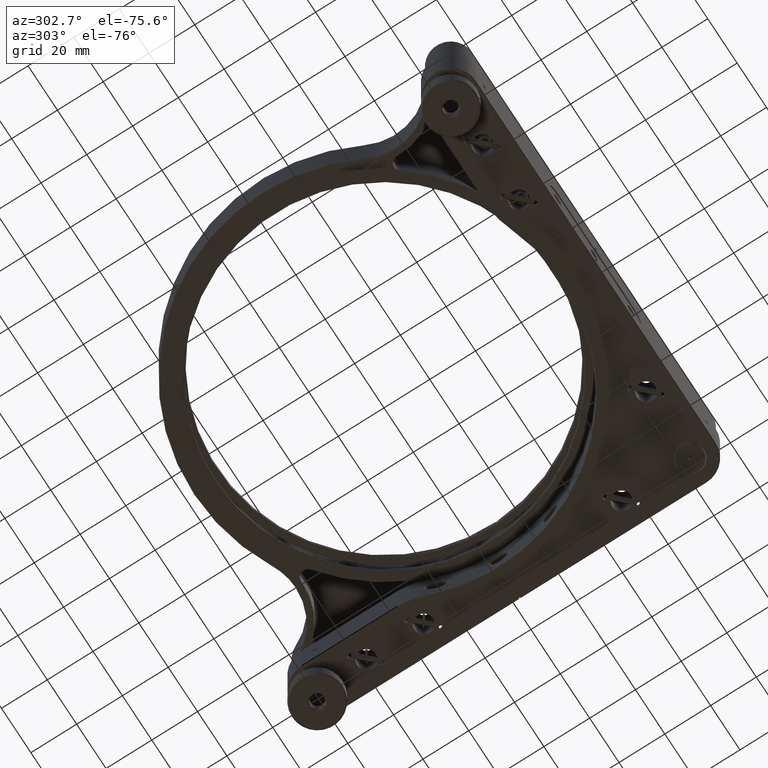
[diagram: clean part render]
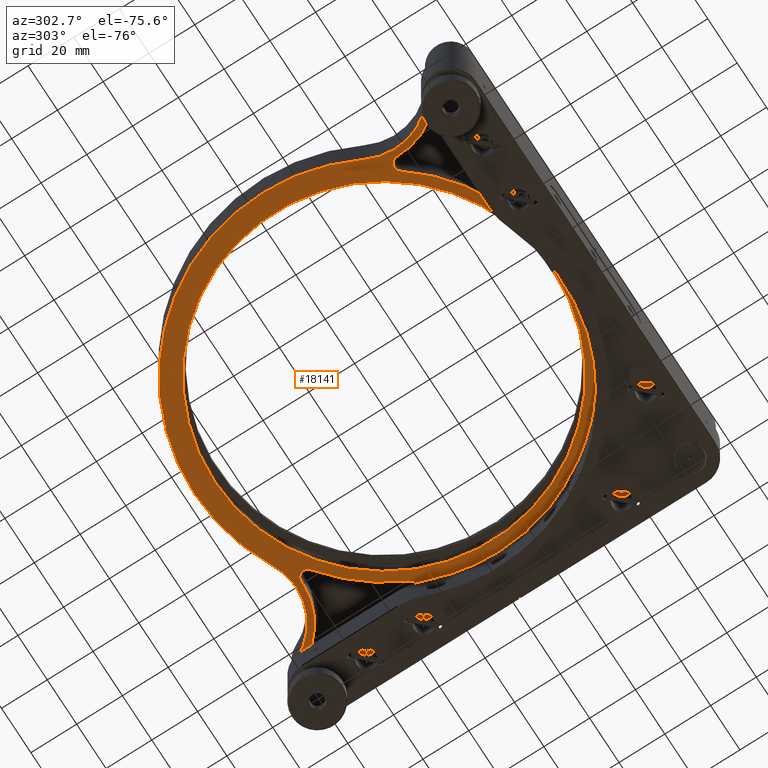
[diagram: same view with one face highlighted and labeled with its STEP entity id]
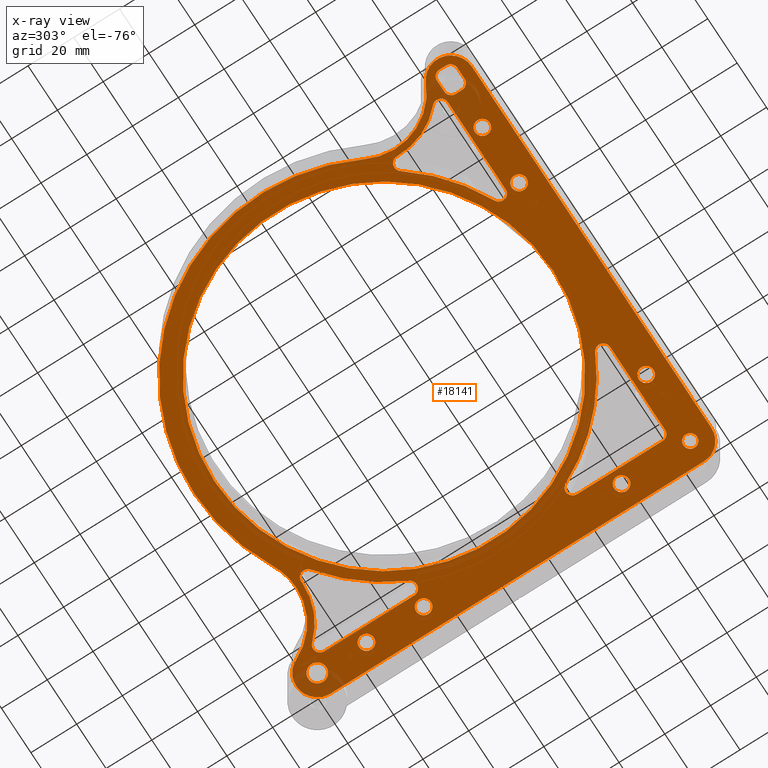
[diagram: x-ray of the same camera — body ghosted, the highlighted face saturated]
A machine part, auxiliary view. The second image highlights one B-rep face of the part: STEP entity #18141.
The next image is the same camera in x-ray: the body ghosted, the highlighted face saturated — about 4% of this face is hidden behind the body in this view.
In plain terms, the highlighted planar face has unit normal (0, 0, 1).
Its self-contained STEP definition (entity closure, byte-faithful):
#26 = CIRCLE ( 'NONE', #3584, 3.000000000000002665 ) ;
#42 = CIRCLE ( 'NONE', #2106, 3.000000000000002665 ) ;
#74 = CARTESIAN_POINT ( 'NONE',  ( -7.225088634215363212E-13, 82.75000000000062528, 14.49528137423859420 ) ) ;
#103 = CARTESIAN_POINT ( 'NONE',  ( -6.696032670337678088E-13, 5.872038966181489995E-13, 14.49528137423859420 ) ) ;
#125 = DIRECTION ( 'NONE',  ( -5.496153587253248179E-16, 1.000000000000000000, 0.000000000000000000 ) ) ;
#159 = DIRECTION ( 'NONE',  ( -1.460576560598803085E-21, 1.472652018071817779E-36, -1.000000000000000000 ) ) ;
#190 = EDGE_LOOP ( 'NONE', ( #4580, #17209, #10339, #1251, #1299, #453, #10093, #14213 ) ) ;
#279 = EDGE_CURVE ( 'NONE', #450, #8023, #9101, .T. ) ;
#294 = VECTOR ( 'NONE', #6792, 1000.000000000000000 ) ;
#301 = FACE_BOUND ( 'NONE', #10457, .T. ) ;
#371 = CARTESIAN_POINT ( 'NONE',  ( 50.05730326211742209, 95.69883170720790133, 14.49528137423859420 ) ) ;
#375 = DIRECTION ( 'NONE',  ( 1.460576560598803085E-21, -1.472652018071817779E-36, 1.000000000000000000 ) ) ;
#434 = VERTEX_POINT ( 'NONE', #3699 ) ;
#450 = VERTEX_POINT ( 'NONE', #1000 ) ;
#453 = ORIENTED_EDGE ( 'NONE', *, *, #7328, .T. ) ;
#484 = DIRECTION ( 'NONE',  ( -1.460576560598803085E-21, 1.472652018071817779E-36, -1.000000000000000000 ) ) ;
#517 = CARTESIAN_POINT ( 'NONE',  ( -6.696032670337678088E-13, 5.872038966181489995E-13, 14.49528137423859420 ) ) ;
#521 = CARTESIAN_POINT ( 'NONE',  ( 75.99999999999947420, -35.55896511429946116, 14.49528137423859420 ) ) ;
#591 = CIRCLE ( 'NONE', #11032, 74.00000000000018474 ) ;
#664 = EDGE_CURVE ( 'NONE', #9955, #13564, #17014, .T. ) ;
#678 = ORIENTED_EDGE ( 'NONE', *, *, #2434, .F. ) ;
#680 = DIRECTION ( 'NONE',  ( -1.460576560598803085E-21, 1.472652018071817779E-36, -1.000000000000000000 ) ) ;
#711 = DIRECTION ( 'NONE',  ( -1.000000000000000000, -6.383782391594649121E-16, 1.460576560598804778E-21 ) ) ;
#716 = EDGE_LOOP ( 'NONE', ( #8131, #7593, #13383, #7918, #17408, #14347, #7752, #2413, #1112, #1516, #16613 ) ) ;
#738 = ORIENTED_EDGE ( 'NONE', *, *, #10214, .T. ) ;
#825 = CIRCLE ( 'NONE', #10336, 3.250000000000016875 ) ;
#902 = CARTESIAN_POINT ( 'NONE',  ( 70.30295566502407212, -34.24521024554459103, 14.49528137423859420 ) ) ;
#964 = EDGE_CURVE ( 'NONE', #2682, #13593, #7261, .T. ) ;
#981 = CARTESIAN_POINT ( 'NONE',  ( 73.06971174419042825, 85.30693313888961882, 14.49528137423859420 ) ) ;
#999 = CIRCLE ( 'NONE', #5468, 3.250000000000016875 ) ;
#1000 = CARTESIAN_POINT ( 'NONE',  ( 78.24999999999943157, 35.00000000000068212, 14.49528137423859420 ) ) ;
#1005 = EDGE_CURVE ( 'NONE', #7389, #14869, #11406, .T. ) ;
#1013 = AXIS2_PLACEMENT_3D ( 'NONE', #14277, #1447, #8543 ) ;
#1039 = CARTESIAN_POINT ( 'NONE',  ( 72.99999999999950262, -75.99999999999950262, 14.49528137423859420 ) ) ;
#1054 = VERTEX_POINT ( 'NONE', #8440 ) ;
#1089 = DIRECTION ( 'NONE',  ( 0.000000000000000000, -1.000000000000000000, 0.000000000000000000 ) ) ;
#1091 = AXIS2_PLACEMENT_3D ( 'NONE', #7170, #12829, #14827 ) ;
#1112 = ORIENTED_EDGE ( 'NONE', *, *, #664, .T. ) ;
#1201 = EDGE_CURVE ( 'NONE', #13564, #14703, #17025, .T. ) ;
#1207 = CARTESIAN_POINT ( 'NONE',  ( -35.00000000000068923, -84.74999999999958789, 14.49528137423859420 ) ) ;
#1251 = ORIENTED_EDGE ( 'NONE', *, *, #18073, .T. ) ;
#1252 = EDGE_CURVE ( 'NONE', #8023, #450, #15269, .T. ) ;
#1266 = DIRECTION ( 'NONE',  ( 0.000000000000000000, -1.000000000000000000, 0.000000000000000000 ) ) ;
#1270 = EDGE_CURVE ( 'NONE', #2913, #12759, #15251, .T. ) ;
#1299 = ORIENTED_EDGE ( 'NONE', *, *, #2012, .T. ) ;
#1340 = VECTOR ( 'NONE', #8497, 1000.000000000000000 ) ;
#1447 = DIRECTION ( 'NONE',  ( -1.460576560598803085E-21, 1.472652018071817779E-36, -1.000000000000000000 ) ) ;
#1472 = CARTESIAN_POINT ( 'NONE',  ( -34.24521024554584159, -70.30295566502414317, 14.49528137423859420 ) ) ;
#1516 = ORIENTED_EDGE ( 'NONE', *, *, #1201, .T. ) ;
#1558 = ORIENTED_EDGE ( 'NONE', *, *, #5052, .F. ) ;
#1572 = DIRECTION ( 'NONE',  ( -6.383782391594654052E-16, 1.000000000000000000, 0.000000000000000000 ) ) ;
#1582 = VECTOR ( 'NONE', #11052, 1000.000000000000000 ) ;
#1598 = VERTEX_POINT ( 'NONE', #15937 ) ;
#1625 = CARTESIAN_POINT ( 'NONE',  ( 75.99999999999950262, -72.99999999999950262, 14.49528137423859420 ) ) ;
#1659 = CIRCLE ( 'NONE', #15620, 78.20000000000018758 ) ;
#1680 = CARTESIAN_POINT ( 'NONE',  ( 35.55896511429946116, -72.99999999999951683, 14.49528137423859420 ) ) ;
#1691 = FACE_BOUND ( 'NONE', #12952, .T. ) ;
#1709 = ORIENTED_EDGE ( 'NONE', *, *, #6888, .T. ) ;
#1743 = DIRECTION ( 'NONE',  ( 0.000000000000000000, 1.000000000000000000, 0.000000000000000000 ) ) ;
#1751 = VERTEX_POINT ( 'NONE', #6835 ) ;
#1766 = AXIS2_PLACEMENT_3D ( 'NONE', #13443, #7706, #6584 ) ;
#1768 = DIRECTION ( 'NONE',  ( 0.000000000000000000, 1.000000000000000000, 0.000000000000000000 ) ) ;
#1860 = CIRCLE ( 'NONE', #11986, 3.000000000000016431 ) ;
#1888 = CARTESIAN_POINT ( 'NONE',  ( 81.49999999999951683, -81.49999999999948841, 14.49528137423859420 ) ) ;
#1932 = ORIENTED_EDGE ( 'NONE', *, *, #17978, .F. ) ;
#1952 = DIRECTION ( 'NONE',  ( -1.460576560598803085E-21, 1.472652018071817779E-36, -1.000000000000000000 ) ) ;
#2010 = AXIS2_PLACEMENT_3D ( 'NONE', #11504, #9757, #14095 ) ;
#2012 = EDGE_CURVE ( 'NONE', #13583, #434, #12521, .T. ) ;
#2055 = FACE_BOUND ( 'NONE', #18364, .T. ) ;
#2056 = EDGE_CURVE ( 'NONE', #13387, #15421, #42, .T. ) ;
#2071 = CARTESIAN_POINT ( 'NONE',  ( -76.00000000000075318, -82.94999999999959073, 14.49528137423859420 ) ) ;
#2094 = CARTESIAN_POINT ( 'NONE',  ( -35.00000000000068923, -81.49999999999957367, 14.49528137423859420 ) ) ;
#2095 = EDGE_CURVE ( 'NONE', #13593, #17968, #3609, .T. ) ;
#2106 = AXIS2_PLACEMENT_3D ( 'NONE', #3085, #3354, #9147 ) ;
#2178 = VECTOR ( 'NONE', #711, 1000.000000000000000 ) ;
#2217 = CARTESIAN_POINT ( 'NONE',  ( 50.05730326211742209, 95.69883170720790133, 14.49528137423859420 ) ) ;
#2261 = DIRECTION ( 'NONE',  ( 0.000000000000000000, -1.000000000000000000, 0.000000000000000000 ) ) ;
#2264 = DIRECTION ( 'NONE',  ( 1.460576560598803085E-21, -1.472652018071817779E-36, 1.000000000000000000 ) ) ;
#2289 = CIRCLE ( 'NONE', #4663, 3.000000000000009770 ) ;
#2302 = EDGE_LOOP ( 'NONE', ( #13337, #15988 ) ) ;
#2328 = VERTEX_POINT ( 'NONE', #9893 ) ;
#2347 = DIRECTION ( 'NONE',  ( -6.383782391594649121E-16, 1.000000000000000000, 0.000000000000000000 ) ) ;
#2413 = ORIENTED_EDGE ( 'NONE', *, *, #12604, .T. ) ;
#2426 = DIRECTION ( 'NONE',  ( 1.000000000000000000, 6.383782391594649121E-16, -1.460576560598804778E-21 ) ) ;
#2434 = EDGE_CURVE ( 'NONE', #8134, #8770, #17543, .T. ) ;
#2589 = EDGE_CURVE ( 'NONE', #4837, #18090, #10411, .T. ) ;
#2682 = VERTEX_POINT ( 'NONE', #9974 ) ;
#2693 = ORIENTED_EDGE ( 'NONE', *, *, #5130, .T. ) ;
#2725 = DIRECTION ( 'NONE',  ( -1.460576560598803085E-21, 1.472652018071817779E-36, -1.000000000000000000 ) ) ;
#2761 = VERTEX_POINT ( 'NONE', #15622 ) ;
#2764 = EDGE_CURVE ( 'NONE', #18090, #4837, #591, .T. ) ;
#2778 = AXIS2_PLACEMENT_3D ( 'NONE', #13649, #9506, #16803 ) ;
#2849 = DIRECTION ( 'NONE',  ( 1.460576560598803085E-21, -1.472652018071817779E-36, 1.000000000000000000 ) ) ;
#2853 = CARTESIAN_POINT ( 'NONE',  ( 75.99999999999950262, -72.99999999999950262, 14.49528137423859420 ) ) ;
#2858 = AXIS2_PLACEMENT_3D ( 'NONE', #15834, #11747, #125 ) ;
#2886 = CARTESIAN_POINT ( 'NONE',  ( -6.782768844136518443E-13, 6.010816844259634563E-13, 14.49528137423859420 ) ) ;
#2904 = ORIENTED_EDGE ( 'NONE', *, *, #1270, .T. ) ;
#2913 = VERTEX_POINT ( 'NONE', #6310 ) ;
#2920 = CARTESIAN_POINT ( 'NONE',  ( 90.74999999999950262, 6.451367218218706512E-13, 14.49528137423859420 ) ) ;
#2939 = DIRECTION ( 'NONE',  ( 1.460576560598803085E-21, -1.472652018071817779E-36, 1.000000000000000000 ) ) ;
#2954 = VERTEX_POINT ( 'NONE', #13647 ) ;
#2979 = VERTEX_POINT ( 'NONE', #18187 ) ;
#3042 = DIRECTION ( 'NONE',  ( -6.383782391594654052E-16, 1.000000000000000000, 0.000000000000000000 ) ) ;
#3061 = CARTESIAN_POINT ( 'NONE',  ( -87.00000000000072475, -80.04999999999961346, 14.49528137423859420 ) ) ;
#3085 = CARTESIAN_POINT ( 'NONE',  ( -64.71538202588615718, -49.04446277862235348, 14.49528137423859420 ) ) ;
#3106 = DIRECTION ( 'NONE',  ( 1.460576560598803085E-21, -1.472652018071817779E-36, 1.000000000000000000 ) ) ;
#3162 = DIRECTION ( 'NONE',  ( -6.383782391594649121E-16, 1.000000000000000000, 7.842971355069754061E-37 ) ) ;
#3227 = CIRCLE ( 'NONE', #8011, 78.20000000000017337 ) ;
#3314 = ORIENTED_EDGE ( 'NONE', *, *, #4835, .F. ) ;
#3325 = CARTESIAN_POINT ( 'NONE',  ( 72.99999999999950262, -72.99999999999950262, 14.49528137423859420 ) ) ;
#3347 = AXIS2_PLACEMENT_3D ( 'NONE', #9891, #9712, #6905 ) ;
#3354 = DIRECTION ( 'NONE',  ( 1.460576560598803085E-21, -1.472652018071817779E-36, 1.000000000000000000 ) ) ;
#3358 = AXIS2_PLACEMENT_3D ( 'NONE', #15856, #10208, #7502 ) ;
#3396 = AXIS2_PLACEMENT_3D ( 'NONE', #3325, #7446, #1743 ) ;
#3403 = DIRECTION ( 'NONE',  ( -1.460576560598803085E-21, 1.472652018071817779E-36, -1.000000000000000000 ) ) ;
#3413 = VERTEX_POINT ( 'NONE', #8562 ) ;
#3419 = CARTESIAN_POINT ( 'NONE',  ( 81.49999999999951683, -84.49999999999950262, 14.49528137423859420 ) ) ;
#3456 = VERTEX_POINT ( 'NONE', #14024 ) ;
#3584 = AXIS2_PLACEMENT_3D ( 'NONE', #6688, #5291, #14202 ) ;
#3609 = CIRCLE ( 'NONE', #5990, 78.20000000000017337 ) ;
#3698 = DIRECTION ( 'NONE',  ( 0.000000000000000000, -1.000000000000000000, 0.000000000000000000 ) ) ;
#3699 = CARTESIAN_POINT ( 'NONE',  ( 70.77973902536562889, 76.86851954734036951, 14.49528137423859420 ) ) ;
#3734 = EDGE_CURVE ( 'NONE', #17873, #9853, #16141, .T. ) ;
#3749 = CARTESIAN_POINT ( 'NONE',  ( -6.696032670337678088E-13, 5.872038966181489995E-13, 14.49528137423859420 ) ) ;
#3753 = ORIENTED_EDGE ( 'NONE', *, *, #10451, .T. ) ;
#3790 = CARTESIAN_POINT ( 'NONE',  ( -7.345792604251428075E-13, 74.00000000000078160, 14.49528137423859420 ) ) ;
#3793 = VERTEX_POINT ( 'NONE', #4805 ) ;
#3800 = AXIS2_PLACEMENT_3D ( 'NONE', #8334, #2725, #4222 ) ;
#3953 = VECTOR ( 'NONE', #6718, 1000.000000000000000 ) ;
#3976 = CARTESIAN_POINT ( 'NONE',  ( -35.55896511430076856, -72.99999999999953104, 14.49528137423859420 ) ) ;
#4114 = VERTEX_POINT ( 'NONE', #2071 ) ;
#4163 = AXIS2_PLACEMENT_3D ( 'NONE', #5204, #11994, #16536 ) ;
#4214 = DIRECTION ( 'NONE',  ( -1.460576560598803085E-21, 1.472652018071817779E-36, -1.000000000000000000 ) ) ;
#4222 = DIRECTION ( 'NONE',  ( 0.000000000000000000, 1.000000000000000000, 0.000000000000000000 ) ) ;
#4246 = DIRECTION ( 'NONE',  ( -1.000000000000000000, 0.000000000000000000, 0.000000000000000000 ) ) ;
#4323 = DIRECTION ( 'NONE',  ( 1.460576560598803085E-21, -1.472652018071817779E-36, 1.000000000000000000 ) ) ;
#4338 = CARTESIAN_POINT ( 'NONE',  ( -60.00000000000073186, -81.49999999999958789, 14.49528137423859420 ) ) ;
#4391 = VERTEX_POINT ( 'NONE', #11785 ) ;
#4393 = AXIS2_PLACEMENT_3D ( 'NONE', #371, #7375, #6232 ) ;
#4518 = VERTEX_POINT ( 'NONE', #13356 ) ;
#4580 = ORIENTED_EDGE ( 'NONE', *, *, #2095, .T. ) ;
#4583 = ORIENTED_EDGE ( 'NONE', *, *, #8635, .F. ) ;
#4604 = VERTEX_POINT ( 'NONE', #902 ) ;
#4655 = DIRECTION ( 'NONE',  ( 1.460576560598803085E-21, -1.472652018071817779E-36, 1.000000000000000000 ) ) ;
#4663 = AXIS2_PLACEMENT_3D ( 'NONE', #7930, #12283, #6711 ) ;
#4680 = CIRCLE ( 'NONE', #6779, 3.250000000000016875 ) ;
#4778 = DIRECTION ( 'NONE',  ( -1.460576560598803085E-21, 1.472652018071817779E-36, -1.000000000000000000 ) ) ;
#4805 = CARTESIAN_POINT ( 'NONE',  ( -74.85098610164028798, -75.99999999999957367, 14.49528137423859420 ) ) ;
#4824 = EDGE_CURVE ( 'NONE', #4992, #17925, #5556, .T. ) ;
#4835 = EDGE_CURVE ( 'NONE', #8770, #8134, #14060, .T. ) ;
#4837 = VERTEX_POINT ( 'NONE', #16877 ) ;
#4852 = EDGE_CURVE ( 'NONE', #7438, #17736, #14358, .T. ) ;
#4857 = CIRCLE ( 'NONE', #3358, 3.000000000000002665 ) ;
#4861 = FACE_BOUND ( 'NONE', #5554, .T. ) ;
#4930 = EDGE_CURVE ( 'NONE', #6559, #3793, #4857, .T. ) ;
#4973 = VECTOR ( 'NONE', #2426, 1000.000000000000000 ) ;
#4992 = VERTEX_POINT ( 'NONE', #1625 ) ;
#4997 = DIRECTION ( 'NONE',  ( 1.460576560598803085E-21, -1.472652018071817779E-36, 1.000000000000000000 ) ) ;
#5052 = EDGE_CURVE ( 'NONE', #4391, #9301, #1860, .T. ) ;
#5064 = DIRECTION ( 'NONE',  ( -6.383782391594650107E-16, 1.000000000000000000, 0.000000000000000000 ) ) ;
#5112 = ORIENTED_EDGE ( 'NONE', *, *, #9515, .F. ) ;
#5130 = EDGE_CURVE ( 'NONE', #12759, #2913, #999, .T. ) ;
#5165 = AXIS2_PLACEMENT_3D ( 'NONE', #517, #159, #5932 ) ;
#5202 = EDGE_CURVE ( 'NONE', #7171, #3413, #6778, .T. ) ;
#5204 = CARTESIAN_POINT ( 'NONE',  ( -79.00000000000075318, -82.94999999999960494, 14.49528137423859420 ) ) ;
#5257 = LINE ( 'NONE', #12610, #1582 ) ;
#5291 = DIRECTION ( 'NONE',  ( -1.460576560598803085E-21, 1.472652018071817779E-36, -1.000000000000000000 ) ) ;
#5312 = EDGE_CURVE ( 'NONE', #3456, #2761, #825, .T. ) ;
#5370 = EDGE_LOOP ( 'NONE', ( #15150, #15806 ) ) ;
#5468 = AXIS2_PLACEMENT_3D ( 'NONE', #11480, #8605, #15729 ) ;
#5470 = VERTEX_POINT ( 'NONE', #7470 ) ;
#5478 = EDGE_CURVE ( 'NONE', #8690, #15474, #16856, .T. ) ;
#5554 = EDGE_LOOP ( 'NONE', ( #9965, #1932 ) ) ;
#5556 = LINE ( 'NONE', #2853, #10505 ) ;
#5632 = DIRECTION ( 'NONE',  ( 0.000000000000000000, -1.000000000000000000, 0.000000000000000000 ) ) ;
#5666 = CIRCLE ( 'NONE', #16036, 4.000000000000017764 ) ;
#5669 = AXIS2_PLACEMENT_3D ( 'NONE', #10745, #12030, #13412 ) ;
#5734 = ORIENTED_EDGE ( 'NONE', *, *, #17640, .F. ) ;
#5774 = CIRCLE ( 'NONE', #14363, 3.250000000000016875 ) ;
#5869 = AXIS2_PLACEMENT_3D ( 'NONE', #7550, #4655, #17459 ) ;
#5932 = DIRECTION ( 'NONE',  ( -6.383782391594645177E-16, 1.000000000000000000, 0.000000000000000000 ) ) ;
#5990 = AXIS2_PLACEMENT_3D ( 'NONE', #6156, #1952, #15914 ) ;
#6009 = DIRECTION ( 'NONE',  ( 0.000000000000000000, -1.000000000000000000, 0.000000000000000000 ) ) ;
#6029 = AXIS2_PLACEMENT_3D ( 'NONE', #2217, #11803, #13464 ) ;
#6040 = AXIS2_PLACEMENT_3D ( 'NONE', #4338, #10022, #1266 ) ;
#6072 = FACE_BOUND ( 'NONE', #16787, .T. ) ;
#6079 = DIRECTION ( 'NONE',  ( 0.000000000000000000, -1.000000000000000000, 0.000000000000000000 ) ) ;
#6156 = CARTESIAN_POINT ( 'NONE',  ( -6.696032670337678088E-13, 5.872038966181489995E-13, 14.49528137423859420 ) ) ;
#6160 = CARTESIAN_POINT ( 'NONE',  ( -6.696032670337678088E-13, 5.872038966181489995E-13, 14.49528137423859420 ) ) ;
#6232 = DIRECTION ( 'NONE',  ( 7.434529182757734548E-16, -1.000000000000000000, 0.000000000000000000 ) ) ;
#6279 = AXIS2_PLACEMENT_3D ( 'NONE', #18135, #14144, #11113 ) ;
#6310 = CARTESIAN_POINT ( 'NONE',  ( 84.74999999999945999, 60.00000000000072475, 14.49528137423859420 ) ) ;
#6330 = LINE ( 'NONE', #12378, #4973 ) ;
#6438 = VERTEX_POINT ( 'NONE', #17248 ) ;
#6559 = VERTEX_POINT ( 'NONE', #16761 ) ;
#6584 = DIRECTION ( 'NONE',  ( 0.000000000000000000, -1.000000000000000000, 0.000000000000000000 ) ) ;
#6679 = CARTESIAN_POINT ( 'NONE',  ( -6.116704418300460562E-13, -90.74999999999958789, 14.49528137423859420 ) ) ;
#6688 = CARTESIAN_POINT ( 'NONE',  ( -84.00000000000073896, -82.94999999999960494, 14.49528137423859420 ) ) ;
#6711 = DIRECTION ( 'NONE',  ( 0.000000000000000000, -1.000000000000000000, 0.000000000000000000 ) ) ;
#6718 = DIRECTION ( 'NONE',  ( 1.000000000000000000, 6.383782391594649121E-16, -1.460576560598804778E-21 ) ) ;
#6778 = CIRCLE ( 'NONE', #3800, 3.000000000000002665 ) ;
#6779 = AXIS2_PLACEMENT_3D ( 'NONE', #16452, #15065, #10616 ) ;
#6792 = DIRECTION ( 'NONE',  ( 5.423822310819621969E-15, -1.000000000000000000, -7.773804578630312717E-36 ) ) ;
#6834 = CIRCLE ( 'NONE', #4163, 3.000000000000002665 ) ;
#6835 = CARTESIAN_POINT ( 'NONE',  ( 51.49999999999950262, -84.74999999999953104, 14.49528137423859420 ) ) ;
#6888 = EDGE_CURVE ( 'NONE', #15474, #8213, #13769, .T. ) ;
#6905 = DIRECTION ( 'NONE',  ( 0.000000000000000000, 1.000000000000000000, 0.000000000000000000 ) ) ;
#6950 = EDGE_CURVE ( 'NONE', #2954, #10447, #8439, .T. ) ;
#6986 = ORIENTED_EDGE ( 'NONE', *, *, #16332, .T. ) ;
#7029 = CARTESIAN_POINT ( 'NONE',  ( 75.99999999999937472, 74.85098610164025956, 14.49528137423859420 ) ) ;
#7155 = AXIS2_PLACEMENT_3D ( 'NONE', #17678, #2264, #7862 ) ;
#7170 = CARTESIAN_POINT ( 'NONE',  ( 51.49999999999950262, -81.49999999999951683, 14.49528137423859420 ) ) ;
#7171 = VERTEX_POINT ( 'NONE', #3061 ) ;
#7207 = EDGE_LOOP ( 'NONE', ( #2904, #2693 ) ) ;
#7261 = CIRCLE ( 'NONE', #8161, 3.000000000000002665 ) ;
#7307 = EDGE_CURVE ( 'NONE', #1598, #4518, #11111, .T. ) ;
#7328 = EDGE_CURVE ( 'NONE', #434, #1054, #15817, .T. ) ;
#7375 = DIRECTION ( 'NONE',  ( -1.460576560598803085E-21, 1.472652018071817779E-36, -1.000000000000000000 ) ) ;
#7386 = DIRECTION ( 'NONE',  ( 1.460576560598803085E-21, -1.472652018071817779E-36, 1.000000000000000000 ) ) ;
#7389 = VERTEX_POINT ( 'NONE', #14767 ) ;
#7406 = CARTESIAN_POINT ( 'NONE',  ( -60.00000000000073186, -84.74999999999960210, 14.49528137423859420 ) ) ;
#7438 = VERTEX_POINT ( 'NONE', #9780 ) ;
#7446 = DIRECTION ( 'NONE',  ( 1.460576560598803085E-21, -1.472652018071817779E-36, 1.000000000000000000 ) ) ;
#7470 = CARTESIAN_POINT ( 'NONE',  ( -79.00000000000075318, -85.94999999999960494, 14.49528137423859420 ) ) ;
#7502 = DIRECTION ( 'NONE',  ( 0.000000000000000000, -1.000000000000000000, 0.000000000000000000 ) ) ;
#7509 = EDGE_CURVE ( 'NONE', #8479, #7728, #11123, .T. ) ;
#7550 = CARTESIAN_POINT ( 'NONE',  ( 72.99999999999940314, 35.55896511430078277, 14.49528137423859420 ) ) ;
#7564 = CARTESIAN_POINT ( 'NONE',  ( 72.99999999999937472, 74.85098610164025956, 14.49528137423859420 ) ) ;
#7570 = FACE_BOUND ( 'NONE', #190, .T. ) ;
#7593 = ORIENTED_EDGE ( 'NONE', *, *, #11445, .T. ) ;
#7604 = DIRECTION ( 'NONE',  ( 0.000000000000000000, 1.000000000000000000, 0.000000000000000000 ) ) ;
#7623 = CIRCLE ( 'NONE', #1091, 3.250000000000016875 ) ;
#7642 = LINE ( 'NONE', #13292, #13282 ) ;
#7706 = DIRECTION ( 'NONE',  ( -1.460576560598803085E-21, 1.472652018071817779E-36, -1.000000000000000000 ) ) ;
#7728 = VERTEX_POINT ( 'NONE', #10223 ) ;
#7752 = ORIENTED_EDGE ( 'NONE', *, *, #3734, .T. ) ;
#7758 = CARTESIAN_POINT ( 'NONE',  ( -73.32479929418030906, -38.35409115685389025, 14.49528137423859420 ) ) ;
#7845 = AXIS2_PLACEMENT_3D ( 'NONE', #10112, #2849, #4246 ) ;
#7849 = ORIENTED_EDGE ( 'NONE', *, *, #11973, .F. ) ;
#7862 = DIRECTION ( 'NONE',  ( -5.496153587253247193E-16, 1.000000000000000000, 0.000000000000000000 ) ) ;
#7912 = EDGE_CURVE ( 'NONE', #14743, #2328, #5774, .T. ) ;
#7918 = ORIENTED_EDGE ( 'NONE', *, *, #7307, .T. ) ;
#7930 = CARTESIAN_POINT ( 'NONE',  ( 72.99999999999947420, -35.55896511429946116, 14.49528137423859420 ) ) ;
#7952 = ORIENTED_EDGE ( 'NONE', *, *, #5478, .T. ) ;
#8011 = AXIS2_PLACEMENT_3D ( 'NONE', #12131, #680, #5064 ) ;
#8023 = VERTEX_POINT ( 'NONE', #15308 ) ;
#8131 = ORIENTED_EDGE ( 'NONE', *, *, #1005, .T. ) ;
#8134 = VERTEX_POINT ( 'NONE', #7406 ) ;
#8151 = EDGE_CURVE ( 'NONE', #15421, #6559, #8751, .T. ) ;
#8161 = AXIS2_PLACEMENT_3D ( 'NONE', #13893, #4323, #5632 ) ;
#8213 = VERTEX_POINT ( 'NONE', #10944 ) ;
#8234 = CIRCLE ( 'NONE', #2858, 25.25000000000000711 ) ;
#8334 = CARTESIAN_POINT ( 'NONE',  ( -84.00000000000073896, -80.04999999999961346, 14.49528137423859420 ) ) ;
#8385 = CIRCLE ( 'NONE', #15768, 9.250000000000049738 ) ;
#8439 = CIRCLE ( 'NONE', #3347, 3.000000000000023537 ) ;
#8440 = CARTESIAN_POINT ( 'NONE',  ( 50.05730326211744341, 67.69883170720791554, 14.49528137423859420 ) ) ;
#8479 = VERTEX_POINT ( 'NONE', #15550 ) ;
#8497 = DIRECTION ( 'NONE',  ( 1.000000000000000000, 2.851821586553312554E-16, -1.460576560598804778E-21 ) ) ;
#8509 = ORIENTED_EDGE ( 'NONE', *, *, #7509, .F. ) ;
#8543 = DIRECTION ( 'NONE',  ( -4.500904153885745282E-15, 1.000000000000000000, 0.000000000000000000 ) ) ;
#8562 = CARTESIAN_POINT ( 'NONE',  ( -84.00000000000073896, -77.04999999999959925, 14.49528137423859420 ) ) ;
#8567 = LINE ( 'NONE', #16987, #294 ) ;
#8582 = DIRECTION ( 'NONE',  ( 1.460576560598803085E-21, -1.472652018071817779E-36, 1.000000000000000000 ) ) ;
#8605 = DIRECTION ( 'NONE',  ( 1.460576560598803085E-21, -1.472652018071817779E-36, 1.000000000000000000 ) ) ;
#8635 = EDGE_CURVE ( 'NONE', #14346, #7171, #7642, .T. ) ;
#8660 = EDGE_CURVE ( 'NONE', #1054, #2682, #12414, .T. ) ;
#8690 = VERTEX_POINT ( 'NONE', #14332 ) ;
#8751 = CIRCLE ( 'NONE', #13466, 28.00000000000003908 ) ;
#8753 = EDGE_CURVE ( 'NONE', #3413, #8479, #6330, .T. ) ;
#8770 = VERTEX_POINT ( 'NONE', #10913 ) ;
#8790 = EDGE_LOOP ( 'NONE', ( #3753, #18210, #17454, #14217, #7952, #1709 ) ) ;
#8795 = FACE_OUTER_BOUND ( 'NONE', #716, .T. ) ;
#8817 = DIRECTION ( 'NONE',  ( -1.460576560598803085E-21, 1.472652018071817779E-36, -1.000000000000000000 ) ) ;
#8843 = CIRCLE ( 'NONE', #13867, 3.000000000000016431 ) ;
#8924 = EDGE_CURVE ( 'NONE', #17925, #4604, #2289, .T. ) ;
#8972 = FACE_BOUND ( 'NONE', #15010, .T. ) ;
#8973 = AXIS2_PLACEMENT_3D ( 'NONE', #7564, #7386, #1768 ) ;
#8989 = DIRECTION ( 'NONE',  ( -1.460576560598803085E-21, 1.472652018071817779E-36, -1.000000000000000000 ) ) ;
#9101 = CIRCLE ( 'NONE', #11197, 3.250000000000016875 ) ;
#9123 = ORIENTED_EDGE ( 'NONE', *, *, #2764, .T. ) ;
#9147 = DIRECTION ( 'NONE',  ( 0.000000000000000000, 1.000000000000000000, 0.000000000000000000 ) ) ;
#9151 = FACE_BOUND ( 'NONE', #5370, .T. ) ;
#9198 = CARTESIAN_POINT ( 'NONE',  ( 70.30295566502401527, 34.24521024554583448, 14.49528137423859420 ) ) ;
#9199 = CARTESIAN_POINT ( 'NONE',  ( 81.49999999999944578, 35.00000000000068212, 14.49528137423859420 ) ) ;
#9257 = CARTESIAN_POINT ( 'NONE',  ( 81.49999999999938893, 81.50000000000076739, 14.49528137423859420 ) ) ;
#9301 = VERTEX_POINT ( 'NONE', #3419 ) ;
#9506 = DIRECTION ( 'NONE',  ( -1.460576560598803085E-21, 1.472652018071817779E-36, -1.000000000000000000 ) ) ;
#9515 = EDGE_CURVE ( 'NONE', #16630, #14346, #26, .T. ) ;
#9535 = ORIENTED_EDGE ( 'NONE', *, *, #279, .T. ) ;
#9541 = CARTESIAN_POINT ( 'NONE',  ( 51.49999999999950262, -78.24999999999950262, 14.49528137423859420 ) ) ;
#9712 = DIRECTION ( 'NONE',  ( 1.460576560598803085E-21, -1.472652018071817779E-36, 1.000000000000000000 ) ) ;
#9757 = DIRECTION ( 'NONE',  ( 1.460576560598803085E-21, -1.472652018071817779E-36, 1.000000000000000000 ) ) ;
#9780 = CARTESIAN_POINT ( 'NONE',  ( -35.55896511430076856, -75.99999999999957367, 14.49528137423859420 ) ) ;
#9787 = CIRCLE ( 'NONE', #2010, 3.250000000000016875 ) ;
#9820 = DIRECTION ( 'NONE',  ( 1.460576560598803085E-21, -1.472652018071817779E-36, 1.000000000000000000 ) ) ;
#9853 = VERTEX_POINT ( 'NONE', #10012 ) ;
#9891 = CARTESIAN_POINT ( 'NONE',  ( 72.99999999999940314, 35.55896511430078277, 14.49528137423859420 ) ) ;
#9893 = CARTESIAN_POINT ( 'NONE',  ( -35.00000000000068923, -78.24999999999955946, 14.49528137423859420 ) ) ;
#9924 = EDGE_CURVE ( 'NONE', #6438, #11276, #11053, .T. ) ;
#9934 = DIRECTION ( 'NONE',  ( 1.000000000000000000, 0.000000000000000000, 0.000000000000000000 ) ) ;
#9955 = VERTEX_POINT ( 'NONE', #13320 ) ;
#9965 = ORIENTED_EDGE ( 'NONE', *, *, #13353, .F. ) ;
#9967 = EDGE_CURVE ( 'NONE', #14703, #7389, #8385, .T. ) ;
#9974 = CARTESIAN_POINT ( 'NONE',  ( 49.14247959960557921, 67.71378038214305661, 14.49528137423859420 ) ) ;
#9985 = DIRECTION ( 'NONE',  ( -6.383782391594645177E-16, 1.000000000000000000, 0.000000000000000000 ) ) ;
#10012 = CARTESIAN_POINT ( 'NONE',  ( 38.35409115685371262, 73.32479929418026643, 14.49528137423859420 ) ) ;
#10022 = DIRECTION ( 'NONE',  ( -1.460576560598803085E-21, 1.472652018071817779E-36, -1.000000000000000000 ) ) ;
#10091 = CIRCLE ( 'NONE', #7155, 25.25000000000001421 ) ;
#10093 = ORIENTED_EDGE ( 'NONE', *, *, #8660, .T. ) ;
#10112 = CARTESIAN_POINT ( 'NONE',  ( 81.49999999999944578, 35.00000000000068212, 14.49528137423859420 ) ) ;
#10208 = DIRECTION ( 'NONE',  ( 1.460576560598803085E-21, -1.472652018071817779E-36, 1.000000000000000000 ) ) ;
#10214 = EDGE_CURVE ( 'NONE', #3793, #7438, #11461, .T. ) ;
#10223 = CARTESIAN_POINT ( 'NONE',  ( -76.00000000000075318, -80.04999999999959925, 14.49528137423859420 ) ) ;
#10261 = CIRCLE ( 'NONE', #3396, 3.000000000000002665 ) ;
#10273 = FACE_BOUND ( 'NONE', #12554, .T. ) ;
#10336 = AXIS2_PLACEMENT_3D ( 'NONE', #12590, #9820, #12681 ) ;
#10339 = ORIENTED_EDGE ( 'NONE', *, *, #6950, .T. ) ;
#10379 = CARTESIAN_POINT ( 'NONE',  ( 35.55896511429946116, -75.99999999999951683, 14.49528137423859420 ) ) ;
#10380 = CARTESIAN_POINT ( 'NONE',  ( -95.69883170720795817, -50.05730326211765657, 14.49528137423859420 ) ) ;
#10411 = CIRCLE ( 'NONE', #17504, 74.00000000000018474 ) ;
#10447 = VERTEX_POINT ( 'NONE', #14494 ) ;
#10451 = EDGE_CURVE ( 'NONE', #8213, #4992, #10261, .T. ) ;
#10457 = EDGE_LOOP ( 'NONE', ( #12317, #17944 ) ) ;
#10505 = VECTOR ( 'NONE', #11426, 1000.000000000000000 ) ;
#10616 = DIRECTION ( 'NONE',  ( 0.000000000000000000, 1.000000000000000000, 0.000000000000000000 ) ) ;
#10648 = DIRECTION ( 'NONE',  ( 0.000000000000000000, 1.000000000000000000, 0.000000000000000000 ) ) ;
#10745 = CARTESIAN_POINT ( 'NONE',  ( 81.49999999999951683, -81.49999999999948841, 14.49528137423859420 ) ) ;
#10777 = CARTESIAN_POINT ( 'NONE',  ( 81.49999999999938893, 81.50000000000076739, 14.49528137423859420 ) ) ;
#10913 = CARTESIAN_POINT ( 'NONE',  ( -60.00000000000073186, -78.24999999999957367, 14.49528137423859420 ) ) ;
#10944 = CARTESIAN_POINT ( 'NONE',  ( 72.99999999999950262, -75.99999999999950262, 14.49528137423859420 ) ) ;
#11032 = AXIS2_PLACEMENT_3D ( 'NONE', #2886, #8582, #1572 ) ;
#11052 = DIRECTION ( 'NONE',  ( -1.000000000000000000, -6.383782391594649121E-16, 1.460576560598804778E-21 ) ) ;
#11053 = CIRCLE ( 'NONE', #17239, 4.000000000000017764 ) ;
#11111 = CIRCLE ( 'NONE', #14050, 9.250000000000063949 ) ;
#11113 = DIRECTION ( 'NONE',  ( 0.000000000000000000, -1.000000000000000000, 0.000000000000000000 ) ) ;
#11123 = CIRCLE ( 'NONE', #2778, 3.000000000000002665 ) ;
#11197 = AXIS2_PLACEMENT_3D ( 'NONE', #9199, #4997, #13536 ) ;
#11276 = VERTEX_POINT ( 'NONE', #17229 ) ;
#11325 = EDGE_CURVE ( 'NONE', #4518, #14054, #10091, .T. ) ;
#11406 = LINE ( 'NONE', #2920, #15840 ) ;
#11408 = CARTESIAN_POINT ( 'NONE',  ( 47.23247523754005073, 62.32441963576719957, 14.49528137423859420 ) ) ;
#11426 = DIRECTION ( 'NONE',  ( -1.009035403155614768E-15, 1.000000000000000000, 1.325670301257779316E-36 ) ) ;
#11444 = ORIENTED_EDGE ( 'NONE', *, *, #13756, .F. ) ;
#11445 = EDGE_CURVE ( 'NONE', #14869, #2979, #11612, .T. ) ;
#11461 = LINE ( 'NONE', #17002, #1340 ) ;
#11480 = CARTESIAN_POINT ( 'NONE',  ( 81.49999999999944578, 60.00000000000072475, 14.49528137423859420 ) ) ;
#11504 = CARTESIAN_POINT ( 'NONE',  ( 81.49999999999945999, -51.49999999999950973, 14.49528137423859420 ) ) ;
#11522 = CIRCLE ( 'NONE', #5869, 3.000000000000023537 ) ;
#11612 = CIRCLE ( 'NONE', #5669, 9.250000000000049738 ) ;
#11661 = FACE_BOUND ( 'NONE', #7207, .T. ) ;
#11743 = ORIENTED_EDGE ( 'NONE', *, *, #4930, .T. ) ;
#11747 = DIRECTION ( 'NONE',  ( 1.460576560598803085E-21, -1.472652018071817779E-36, 1.000000000000000000 ) ) ;
#11785 = CARTESIAN_POINT ( 'NONE',  ( 81.49999999999951683, -78.49999999999947420, 14.49528137423859420 ) ) ;
#11803 = DIRECTION ( 'NONE',  ( -1.460576560598803085E-21, 1.472652018071817779E-36, -1.000000000000000000 ) ) ;
#11835 = DIRECTION ( 'NONE',  ( 1.460576560598803085E-21, 1.481031574056762071E-37, 1.000000000000000000 ) ) ;
#11899 = ORIENTED_EDGE ( 'NONE', *, *, #8753, .F. ) ;
#11901 = CIRCLE ( 'NONE', #16937, 82.75000000000021316 ) ;
#11973 = EDGE_CURVE ( 'NONE', #5470, #16630, #5257, .T. ) ;
#11986 = AXIS2_PLACEMENT_3D ( 'NONE', #1888, #8817, #6009 ) ;
#11994 = DIRECTION ( 'NONE',  ( -1.460576560598803085E-21, 1.472652018071817779E-36, -1.000000000000000000 ) ) ;
#12011 = ORIENTED_EDGE ( 'NONE', *, *, #1252, .T. ) ;
#12019 = EDGE_CURVE ( 'NONE', #2979, #1598, #13822, .T. ) ;
#12030 = DIRECTION ( 'NONE',  ( -1.460576560598803085E-21, 1.472652018071817779E-36, -1.000000000000000000 ) ) ;
#12131 = CARTESIAN_POINT ( 'NONE',  ( -6.696032670337678088E-13, 5.872038966181489995E-13, 14.49528137423859420 ) ) ;
#12174 = DIRECTION ( 'NONE',  ( 1.500301384628579526E-15, 1.000000000000000000, 0.000000000000000000 ) ) ;
#12283 = DIRECTION ( 'NONE',  ( 1.460576560598803085E-21, -1.472652018071817779E-36, 1.000000000000000000 ) ) ;
#12317 = ORIENTED_EDGE ( 'NONE', *, *, #5312, .T. ) ;
#12378 = CARTESIAN_POINT ( 'NONE',  ( -84.00000000000073896, -77.04999999999959925, 14.49528137423859420 ) ) ;
#12414 = CIRCLE ( 'NONE', #4393, 28.00000000000003908 ) ;
#12472 = ORIENTED_EDGE ( 'NONE', *, *, #17390, .F. ) ;
#12521 = CIRCLE ( 'NONE', #8973, 3.000000000000002665 ) ;
#12554 = EDGE_LOOP ( 'NONE', ( #15566, #9123 ) ) ;
#12590 = CARTESIAN_POINT ( 'NONE',  ( 81.49999999999945999, -51.49999999999950973, 14.49528137423859420 ) ) ;
#12594 = AXIS2_PLACEMENT_3D ( 'NONE', #18263, #3106, #9934 ) ;
#12604 = EDGE_CURVE ( 'NONE', #9853, #9955, #8234, .T. ) ;
#12607 = DIRECTION ( 'NONE',  ( 6.383782391594649121E-16, -1.000000000000000000, -7.842971355069754061E-37 ) ) ;
#12610 = CARTESIAN_POINT ( 'NONE',  ( -84.00000000000073896, -85.94999999999960494, 14.49528137423859420 ) ) ;
#12681 = DIRECTION ( 'NONE',  ( 1.000000000000000000, 0.000000000000000000, 0.000000000000000000 ) ) ;
#12714 = EDGE_CURVE ( 'NONE', #4604, #8690, #1659, .T. ) ;
#12759 = VERTEX_POINT ( 'NONE', #14992 ) ;
#12829 = DIRECTION ( 'NONE',  ( -1.460576560598803085E-21, 1.472652018071817779E-36, -1.000000000000000000 ) ) ;
#12952 = EDGE_LOOP ( 'NONE', ( #11743, #738, #12956, #6986, #16655, #13874 ) ) ;
#12956 = ORIENTED_EDGE ( 'NONE', *, *, #4852, .T. ) ;
#13048 = FACE_BOUND ( 'NONE', #2302, .T. ) ;
#13110 = VERTEX_POINT ( 'NONE', #9541 ) ;
#13152 = CARTESIAN_POINT ( 'NONE',  ( 50.05730326211745052, 95.69883170720794396, 14.49528137423859420 ) ) ;
#13218 = PLANE ( 'NONE',  #15172 ) ;
#13278 = DIRECTION ( 'NONE',  ( -1.460576560598803085E-21, 1.472652018071817779E-36, -1.000000000000000000 ) ) ;
#13282 = VECTOR ( 'NONE', #3162, 1000.000000000000000 ) ;
#13292 = CARTESIAN_POINT ( 'NONE',  ( -87.00000000000072475, -80.04999999999961346, 14.49528137423859420 ) ) ;
#13320 = CARTESIAN_POINT ( 'NONE',  ( 50.05730326211746473, 70.44883170720792975, 14.49528137423859420 ) ) ;
#13337 = ORIENTED_EDGE ( 'NONE', *, *, #9924, .F. ) ;
#13353 = EDGE_CURVE ( 'NONE', #1751, #13110, #7623, .T. ) ;
#13356 = CARTESIAN_POINT ( 'NONE',  ( -85.30693313888961882, -73.06971174419064141, 14.49528137423859420 ) ) ;
#13383 = ORIENTED_EDGE ( 'NONE', *, *, #12019, .T. ) ;
#13387 = VERTEX_POINT ( 'NONE', #17691 ) ;
#13412 = DIRECTION ( 'NONE',  ( 0.000000000000000000, 1.000000000000000000, 0.000000000000000000 ) ) ;
#13443 = CARTESIAN_POINT ( 'NONE',  ( 51.49999999999950262, -81.49999999999951683, 14.49528137423859420 ) ) ;
#13464 = DIRECTION ( 'NONE',  ( 7.434529182757734548E-16, -1.000000000000000000, 0.000000000000000000 ) ) ;
#13466 = AXIS2_PLACEMENT_3D ( 'NONE', #10380, #8989, #14635 ) ;
#13536 = DIRECTION ( 'NONE',  ( -1.000000000000000000, 0.000000000000000000, 0.000000000000000000 ) ) ;
#13552 = CARTESIAN_POINT ( 'NONE',  ( -81.50000000000073896, -81.49999999999960210, 14.49528137423859420 ) ) ;
#13564 = VERTEX_POINT ( 'NONE', #981 ) ;
#13583 = VERTEX_POINT ( 'NONE', #13895 ) ;
#13593 = VERTEX_POINT ( 'NONE', #11408 ) ;
#13597 = CARTESIAN_POINT ( 'NONE',  ( 81.49999999999938893, 81.50000000000076739, 14.49528137423859420 ) ) ;
#13647 = CARTESIAN_POINT ( 'NONE',  ( 72.99999999999940314, 32.55896511430076856, 14.49528137423859420 ) ) ;
#13649 = CARTESIAN_POINT ( 'NONE',  ( -79.00000000000075318, -80.04999999999961346, 14.49528137423859420 ) ) ;
#13654 = EDGE_LOOP ( 'NONE', ( #9535, #12011 ) ) ;
#13756 = EDGE_CURVE ( 'NONE', #9301, #4391, #8843, .T. ) ;
#13769 = LINE ( 'NONE', #1039, #3953 ) ;
#13822 = LINE ( 'NONE', #6679, #2178 ) ;
#13867 = AXIS2_PLACEMENT_3D ( 'NONE', #15925, #484, #6079 ) ;
#13874 = ORIENTED_EDGE ( 'NONE', *, *, #8151, .T. ) ;
#13893 = CARTESIAN_POINT ( 'NONE',  ( 49.04446277862216874, 64.71538202588611455, 14.49528137423859420 ) ) ;
#13895 = CARTESIAN_POINT ( 'NONE',  ( 75.99999999999937472, 74.85098610164025956, 14.49528137423859420 ) ) ;
#14024 = CARTESIAN_POINT ( 'NONE',  ( 84.74999999999947420, -51.49999999999950973, 14.49528137423859420 ) ) ;
#14050 = AXIS2_PLACEMENT_3D ( 'NONE', #13552, #13278, #12174 ) ;
#14054 = VERTEX_POINT ( 'NONE', #7758 ) ;
#14060 = CIRCLE ( 'NONE', #6040, 3.250000000000016875 ) ;
#14095 = DIRECTION ( 'NONE',  ( 1.000000000000000000, 0.000000000000000000, 0.000000000000000000 ) ) ;
#14144 = DIRECTION ( 'NONE',  ( -1.460576560598803085E-21, 1.472652018071817779E-36, -1.000000000000000000 ) ) ;
#14165 = CARTESIAN_POINT ( 'NONE',  ( -84.00000000000073896, -85.94999999999960494, 14.49528137423859420 ) ) ;
#14168 = DIRECTION ( 'NONE',  ( -1.344770400167733212E-15, 1.000000000000000000, 1.816036968466388546E-36 ) ) ;
#14202 = DIRECTION ( 'NONE',  ( 0.000000000000000000, 1.000000000000000000, 0.000000000000000000 ) ) ;
#14213 = ORIENTED_EDGE ( 'NONE', *, *, #964, .T. ) ;
#14217 = ORIENTED_EDGE ( 'NONE', *, *, #12714, .T. ) ;
#14277 = CARTESIAN_POINT ( 'NONE',  ( 81.49999999999938893, 81.50000000000076739, 14.49528137423859420 ) ) ;
#14332 = CARTESIAN_POINT ( 'NONE',  ( 34.24521024554452708, -70.30295566502412896, 14.49528137423859420 ) ) ;
#14342 = AXIS2_PLACEMENT_3D ( 'NONE', #13152, #16121, #14460 ) ;
#14346 = VERTEX_POINT ( 'NONE', #18232 ) ;
#14347 = ORIENTED_EDGE ( 'NONE', *, *, #18303, .T. ) ;
#14358 = CIRCLE ( 'NONE', #16731, 3.000000000000030198 ) ;
#14363 = AXIS2_PLACEMENT_3D ( 'NONE', #2094, #3403, #7604 ) ;
#14391 = CARTESIAN_POINT ( 'NONE',  ( -6.782768844136518443E-13, 6.010816844259634563E-13, 14.49528137423859420 ) ) ;
#14460 = DIRECTION ( 'NONE',  ( -5.496153587253248179E-16, 1.000000000000000000, 0.000000000000000000 ) ) ;
#14464 = EDGE_CURVE ( 'NONE', #17968, #2954, #11522, .T. ) ;
#14494 = CARTESIAN_POINT ( 'NONE',  ( 75.99999999999941735, 35.55896511430076856, 14.49528137423859420 ) ) ;
#14547 = EDGE_CURVE ( 'NONE', #2328, #14743, #4680, .T. ) ;
#14617 = FACE_BOUND ( 'NONE', #8790, .T. ) ;
#14635 = DIRECTION ( 'NONE',  ( -4.956352788505156365E-16, 1.000000000000000000, 0.000000000000000000 ) ) ;
#14703 = VERTEX_POINT ( 'NONE', #16724 ) ;
#14743 = VERTEX_POINT ( 'NONE', #1207 ) ;
#14767 = CARTESIAN_POINT ( 'NONE',  ( 90.74999999999943157, 81.50000000000075318, 14.49528137423859420 ) ) ;
#14799 = FACE_BOUND ( 'NONE', #13654, .T. ) ;
#14827 = DIRECTION ( 'NONE',  ( 0.000000000000000000, -1.000000000000000000, 0.000000000000000000 ) ) ;
#14869 = VERTEX_POINT ( 'NONE', #15307 ) ;
#14992 = CARTESIAN_POINT ( 'NONE',  ( 78.24999999999943157, 60.00000000000072475, 14.49528137423859420 ) ) ;
#15010 = EDGE_LOOP ( 'NONE', ( #11444, #1558 ) ) ;
#15065 = DIRECTION ( 'NONE',  ( -1.460576560598803085E-21, 1.472652018071817779E-36, -1.000000000000000000 ) ) ;
#15148 = EDGE_CURVE ( 'NONE', #2761, #3456, #9787, .T. ) ;
#15150 = ORIENTED_EDGE ( 'NONE', *, *, #14547, .F. ) ;
#15172 = AXIS2_PLACEMENT_3D ( 'NONE', #6160, #11835, #17480 ) ;
#15251 = CIRCLE ( 'NONE', #12594, 3.250000000000016875 ) ;
#15269 = CIRCLE ( 'NONE', #7845, 3.250000000000016875 ) ;
#15307 = CARTESIAN_POINT ( 'NONE',  ( 90.74999999999955946, -81.49999999999948841, 14.49528137423859420 ) ) ;
#15308 = CARTESIAN_POINT ( 'NONE',  ( 84.74999999999945999, 35.00000000000068212, 14.49528137423859420 ) ) ;
#15421 = VERTEX_POINT ( 'NONE', #17231 ) ;
#15466 = VECTOR ( 'NONE', #14168, 1000.000000000000000 ) ;
#15474 = VERTEX_POINT ( 'NONE', #10379 ) ;
#15550 = CARTESIAN_POINT ( 'NONE',  ( -79.00000000000075318, -77.04999999999959925, 14.49528137423859420 ) ) ;
#15566 = ORIENTED_EDGE ( 'NONE', *, *, #2589, .T. ) ;
#15620 = AXIS2_PLACEMENT_3D ( 'NONE', #3749, #16192, #2347 ) ;
#15622 = CARTESIAN_POINT ( 'NONE',  ( 78.24999999999944578, -51.49999999999950973, 14.49528137423859420 ) ) ;
#15729 = DIRECTION ( 'NONE',  ( 1.000000000000000000, 0.000000000000000000, 0.000000000000000000 ) ) ;
#15768 = AXIS2_PLACEMENT_3D ( 'NONE', #13597, #16291, #10648 ) ;
#15782 = DIRECTION ( 'NONE',  ( 1.460576560598803085E-21, -1.472652018071817779E-36, 1.000000000000000000 ) ) ;
#15806 = ORIENTED_EDGE ( 'NONE', *, *, #7912, .F. ) ;
#15817 = CIRCLE ( 'NONE', #6029, 28.00000000000003908 ) ;
#15834 = CARTESIAN_POINT ( 'NONE',  ( 50.05730326211745052, 95.69883170720794396, 14.49528137423859420 ) ) ;
#15840 = VECTOR ( 'NONE', #12607, 1000.000000000000000 ) ;
#15856 = CARTESIAN_POINT ( 'NONE',  ( -74.85098610164028798, -72.99999999999955946, 14.49528137423859420 ) ) ;
#15914 = DIRECTION ( 'NONE',  ( 6.383782391594650107E-16, -1.000000000000000000, 0.000000000000000000 ) ) ;
#15925 = CARTESIAN_POINT ( 'NONE',  ( 81.49999999999951683, -81.49999999999948841, 14.49528137423859420 ) ) ;
#15937 = CARTESIAN_POINT ( 'NONE',  ( -81.50000000000073896, -90.74999999999964473, 14.49528137423859420 ) ) ;
#15988 = ORIENTED_EDGE ( 'NONE', *, *, #18029, .F. ) ;
#16036 = AXIS2_PLACEMENT_3D ( 'NONE', #10777, #16233, #3698 ) ;
#16121 = DIRECTION ( 'NONE',  ( 1.460576560598803085E-21, -1.472652018071817779E-36, 1.000000000000000000 ) ) ;
#16141 = CIRCLE ( 'NONE', #5165, 82.75000000000021316 ) ;
#16180 = DIRECTION ( 'NONE',  ( 0.000000000000000000, 1.000000000000000000, 0.000000000000000000 ) ) ;
#16192 = DIRECTION ( 'NONE',  ( -1.460576560598803085E-21, 1.472652018071817779E-36, -1.000000000000000000 ) ) ;
#16233 = DIRECTION ( 'NONE',  ( -1.460576560598803085E-21, 1.472652018071817779E-36, -1.000000000000000000 ) ) ;
#16291 = DIRECTION ( 'NONE',  ( -1.460576560598803085E-21, 1.472652018071817779E-36, -1.000000000000000000 ) ) ;
#16332 = EDGE_CURVE ( 'NONE', #17736, #13387, #3227, .T. ) ;
#16452 = CARTESIAN_POINT ( 'NONE',  ( -35.00000000000068923, -81.49999999999957367, 14.49528137423859420 ) ) ;
#16536 = DIRECTION ( 'NONE',  ( 0.000000000000000000, 1.000000000000000000, 0.000000000000000000 ) ) ;
#16613 = ORIENTED_EDGE ( 'NONE', *, *, #9967, .T. ) ;
#16630 = VERTEX_POINT ( 'NONE', #14165 ) ;
#16655 = ORIENTED_EDGE ( 'NONE', *, *, #2056, .T. ) ;
#16724 = CARTESIAN_POINT ( 'NONE',  ( 81.49999999999938893, 90.75000000000079581, 14.49528137423859420 ) ) ;
#16731 = AXIS2_PLACEMENT_3D ( 'NONE', #3976, #2939, #1089 ) ;
#16761 = CARTESIAN_POINT ( 'NONE',  ( -76.86851954734038372, -70.77973902536584205, 14.49528137423859420 ) ) ;
#16787 = EDGE_LOOP ( 'NONE', ( #678, #3314 ) ) ;
#16803 = DIRECTION ( 'NONE',  ( 0.000000000000000000, 1.000000000000000000, 0.000000000000000000 ) ) ;
#16856 = CIRCLE ( 'NONE', #18035, 3.000000000000016431 ) ;
#16877 = CARTESIAN_POINT ( 'NONE',  ( -6.310368947158512316E-13, -73.99999999999958789, 14.49528137423859420 ) ) ;
#16937 = AXIS2_PLACEMENT_3D ( 'NONE', #103, #4214, #9985 ) ;
#16987 = CARTESIAN_POINT ( 'NONE',  ( -76.00000000000076739, -80.04999999999959925, 14.49528137423859420 ) ) ;
#17002 = CARTESIAN_POINT ( 'NONE',  ( -74.85098610164028798, -75.99999999999957367, 14.49528137423859420 ) ) ;
#17014 = CIRCLE ( 'NONE', #14342, 25.25000000000000711 ) ;
#17025 = CIRCLE ( 'NONE', #1013, 9.250000000000049738 ) ;
#17209 = ORIENTED_EDGE ( 'NONE', *, *, #14464, .T. ) ;
#17229 = CARTESIAN_POINT ( 'NONE',  ( 81.49999999999938893, 85.50000000000078160, 14.49528137423859420 ) ) ;
#17231 = CARTESIAN_POINT ( 'NONE',  ( -67.71378038214309925, -49.14247959960576395, 14.49528137423859420 ) ) ;
#17239 = AXIS2_PLACEMENT_3D ( 'NONE', #9257, #4778, #2261 ) ;
#17248 = CARTESIAN_POINT ( 'NONE',  ( 81.49999999999938893, 77.50000000000075318, 14.49528137423859420 ) ) ;
#17390 = EDGE_CURVE ( 'NONE', #4114, #5470, #6834, .T. ) ;
#17408 = ORIENTED_EDGE ( 'NONE', *, *, #11325, .T. ) ;
#17454 = ORIENTED_EDGE ( 'NONE', *, *, #8924, .T. ) ;
#17459 = DIRECTION ( 'NONE',  ( 0.000000000000000000, 1.000000000000000000, 0.000000000000000000 ) ) ;
#17480 = DIRECTION ( 'NONE',  ( -6.383782391594649121E-16, 1.000000000000000000, 7.842971355069752390E-37 ) ) ;
#17504 = AXIS2_PLACEMENT_3D ( 'NONE', #14391, #15782, #3042 ) ;
#17543 = CIRCLE ( 'NONE', #6279, 3.250000000000016875 ) ;
#17640 = EDGE_CURVE ( 'NONE', #7728, #4114, #8567, .T. ) ;
#17678 = CARTESIAN_POINT ( 'NONE',  ( -95.69883170720795817, -50.05730326211765657, 14.49528137423859420 ) ) ;
#17691 = CARTESIAN_POINT ( 'NONE',  ( -62.32441963576724930, -47.23247523754020705, 14.49528137423859420 ) ) ;
#17736 = VERTEX_POINT ( 'NONE', #1472 ) ;
#17801 = CIRCLE ( 'NONE', #1766, 3.250000000000016875 ) ;
#17873 = VERTEX_POINT ( 'NONE', #74 ) ;
#17925 = VERTEX_POINT ( 'NONE', #521 ) ;
#17944 = ORIENTED_EDGE ( 'NONE', *, *, #15148, .T. ) ;
#17968 = VERTEX_POINT ( 'NONE', #9198 ) ;
#17978 = EDGE_CURVE ( 'NONE', #13110, #1751, #17801, .T. ) ;
#18029 = EDGE_CURVE ( 'NONE', #11276, #6438, #5666, .T. ) ;
#18035 = AXIS2_PLACEMENT_3D ( 'NONE', #1680, #375, #16180 ) ;
#18073 = EDGE_CURVE ( 'NONE', #10447, #13583, #18339, .T. ) ;
#18090 = VERTEX_POINT ( 'NONE', #3790 ) ;
#18135 = CARTESIAN_POINT ( 'NONE',  ( -60.00000000000073186, -81.49999999999958789, 14.49528137423859420 ) ) ;
#18141 = ADVANCED_FACE ( 'NONE', ( #8795, #1691, #4861, #9151, #6072, #8972, #13048, #2055, #14799, #11661, #301, #10273, #14617, #7570 ), #13218, .F. ) ;
#18187 = CARTESIAN_POINT ( 'NONE',  ( 81.49999999999950262, -90.74999999999953104, 14.49528137423859420 ) ) ;
#18210 = ORIENTED_EDGE ( 'NONE', *, *, #4824, .T. ) ;
#18232 = CARTESIAN_POINT ( 'NONE',  ( -87.00000000000072475, -82.94999999999961915, 14.49528137423859420 ) ) ;
#18263 = CARTESIAN_POINT ( 'NONE',  ( 81.49999999999944578, 60.00000000000072475, 14.49528137423859420 ) ) ;
#18287 = ORIENTED_EDGE ( 'NONE', *, *, #5202, .F. ) ;
#18303 = EDGE_CURVE ( 'NONE', #14054, #17873, #11901, .T. ) ;
#18339 = LINE ( 'NONE', #7029, #15466 ) ;
#18364 = EDGE_LOOP ( 'NONE', ( #4583, #5112, #7849, #12472, #5734, #8509, #11899, #18287 ) ) ;